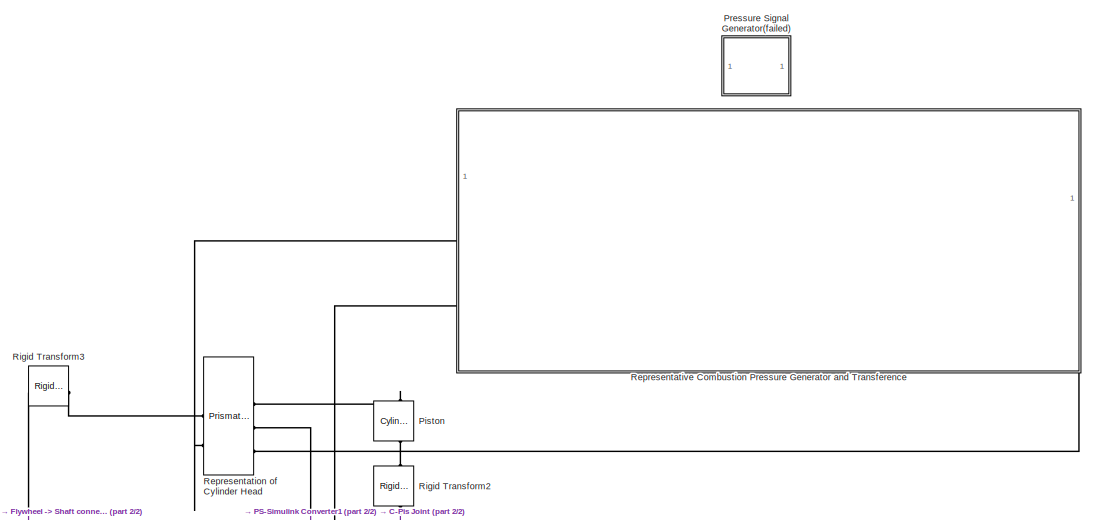
[diagram: root canvas - part 1/2, full width, top band]
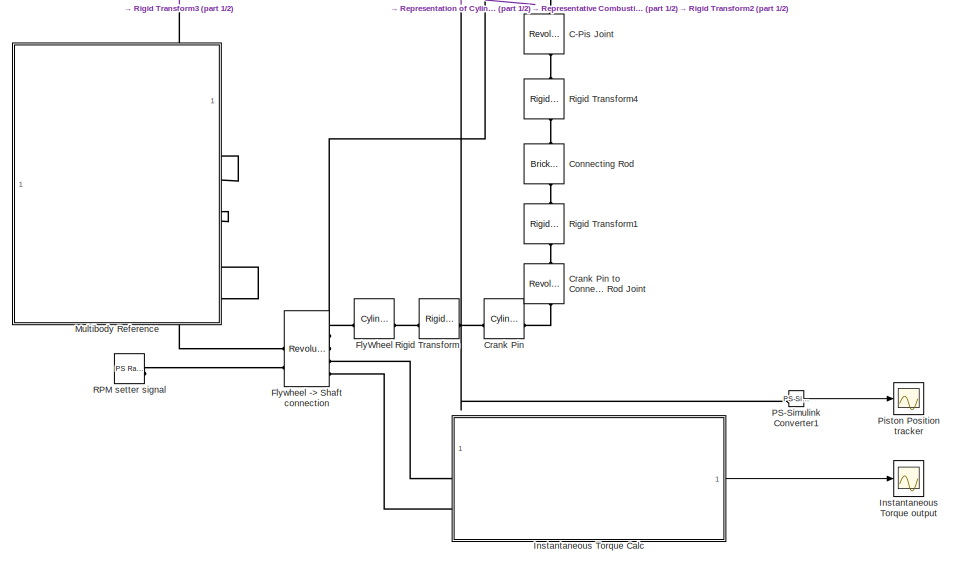
[diagram: root canvas - part 2/2, full width, bottom band]
MODEL slx_8fad8a88feab
KIND model
CONFIG AbsTol = auto
CONFIG EnableMultiTasking = off
CONFIG FixedStep = auto
CONFIG InitFcn = load("engine_params.mat");
CONFIG MaxStep = auto
CONFIG MinStep = auto
CONFIG RelTol = 1e-3
CONFIG SampleTimeConstraint = Unconstrained
CONFIG SolverName = ode15s
CONFIG StartTime = 0.0
CONFIG StopTime = 120
BLOCK [Reference] C-Pis Joint  REF=sm_lib/Joints/Revolute Joint
  NameLocation = right
  SourceBlock = sm_lib/Joints/Revolute Joint
  SourceType = Revolute Joint
BLOCK [Reference] Connecting Rod  REF=sm_lib/Body Elements/Brick Solid
  NameLocation = right
  SourceBlock = sm_lib/Body Elements/Brick Solid
  SourceType = Brick Solid
BLOCK [Reference] Crank Pin  REF=sm_lib/Body Elements/Cylindrical Solid
  SourceBlock = sm_lib/Body Elements/Cylindrical Solid
  SourceType = Cylindrical Solid
BLOCK [Reference] Crank Pin to Connecting Rod Joint  REF=sm_lib/Joints/Revolute Joint
  NameLocation = right
  SourceBlock = sm_lib/Joints/Revolute Joint
  SourceType = Revolute Joint
BLOCK [Reference] FlyWheel  REF=sm_lib/Body Elements/Cylindrical Solid
  NameLocation = top
  SourceBlock = sm_lib/Body Elements/Cylindrical Solid
  SourceType = Cylindrical Solid
BLOCK [Reference] Flywheel -> Shaft connection  REF=sm_lib/Joints/Revolute Joint
  SourceBlock = sm_lib/Joints/Revolute Joint
  SourceType = Revolute Joint
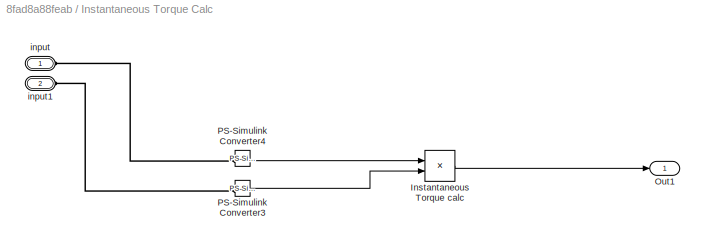
BLOCK [SubSystem] Instantaneous Torque Calc
BLOCK [Product] Instantaneous Torque Calc/Instantaneous Torque calc
BLOCK [Outport] Instantaneous Torque Calc/Out1
BLOCK [Reference] Instantaneous Torque Calc/PS-Simulink Converter3  REF=nesl_utility/PS-Simulink
Converter
  SourceBlock = nesl_utility/PS-Simulink\nConverter
  SourceType = PS-Simulink\nConverter
BLOCK [Reference] Instantaneous Torque Calc/PS-Simulink Converter4  REF=nesl_utility/PS-Simulink
Converter
  SourceBlock = nesl_utility/PS-Simulink\nConverter
  SourceType = PS-Simulink\nConverter
BLOCK [PMIOPort] Instantaneous Torque Calc/input
  Side = Left
BLOCK [PMIOPort] Instantaneous Torque Calc/input1
  Port = 2
  Side = Left
BLOCK [Scope] Instantaneous Torque output
  Floating = off
  NumInputPorts = 1
  ScopeSpecificationString = Simulink.scopes.TimeScopeBlockCfg('CurrentConfiguration', extmgr.ConfigurationSet(extmgr.Configuration('Core','General UI',true),extmgr.Configuration('Core','Source UI',true),extmgr.Configuration('Sources','WiredSimulink',true),extmgr.Configuration('Visuals','Time Domain',true,'SerializedDisplays',{struct('MinYLimReal','-504558162.89336','MaxYLimReal','373957791.12561','YLabelReal','','MinYLimMag'...<+1705ch>
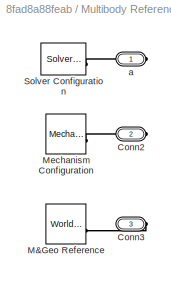
BLOCK [SubSystem] Multibody Reference
BLOCK [PMIOPort] Multibody Reference/Conn2
  Port = 2
  Side = Right
BLOCK [PMIOPort] Multibody Reference/Conn3
  Port = 3
  Side = Right
BLOCK [Reference] Multibody Reference/M&Geo Reference  REF=sm_lib/Frames and
Transforms/World Frame
  SourceBlock = sm_lib/Frames and\nTransforms/World Frame
  SourceType = World Frame
BLOCK [Reference] Multibody Reference/Mechanism Configuration  REF=sm_lib/Utilities/Mechanism
Configuration
  SourceBlock = sm_lib/Utilities/Mechanism\nConfiguration
  SourceType = Mechanism\nConfiguration
BLOCK [Reference] Multibody Reference/Solver Configuration  REF=nesl_utility/Solver
Configuration
  SourceBlock = nesl_utility/Solver\nConfiguration
  SourceType = Solver\nConfiguration
BLOCK [PMIOPort] Multibody Reference/a
  Side = Right
BLOCK [Reference] PS-Simulink Converter1  REF=nesl_utility/PS-Simulink
Converter
  SourceBlock = nesl_utility/PS-Simulink\nConverter
  SourceType = PS-Simulink\nConverter
BLOCK [Reference] Piston  REF=sm_lib/Body Elements/Cylindrical Solid
  NameLocation = right
  SourceBlock = sm_lib/Body Elements/Cylindrical Solid
  SourceType = Cylindrical Solid
BLOCK [Scope] Piston Position tracker
  Floating = off
  NumInputPorts = 1
  ScopeSpecificationString = Simulink.scopes.TimeScopeBlockCfg('CurrentConfiguration', extmgr.ConfigurationSet(extmgr.Configuration('Core','General UI',true),extmgr.Configuration('Core','Source UI',true),extmgr.Configuration('Sources','WiredSimulink',true,'DataLoggingVariableName','ScopeData1'),extmgr.Configuration('Visuals','Time Domain',true,'SerializedDisplays',{struct('MinYLimReal','0.14889','MaxYLimReal','0.26893','YLabe...<+1494ch>
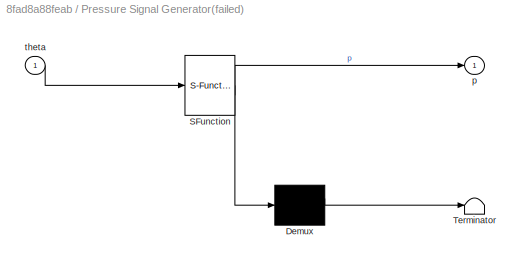
BLOCK [SubSystem] Pressure Signal Generator(failed)
  ErrorFcn = Stateflow.Translate.translate
  PermitHierarchicalResolution = ExplicitOnly
  SFBlockType = MATLAB Function
  TreatAsAtomicUnit = on
BLOCK [Demux] Pressure Signal Generator(failed)/ Demux 
  Outputs = 1
BLOCK [S-Function] Pressure Signal Generator(failed)/ SFunction 
  EnableBusSupport = on
  FunctionName = sf_sfun
  Parameters = E_comb,V_max,dur,theta_ign
  PortCounts = [1 2]
  SFcnIsStateOwnerBlock = off
  SFunctionDeploymentMode = off
  Tag = Stateflow S-Function 2
BLOCK [Terminator] Pressure Signal Generator(failed)/ Terminator 
BLOCK [Outport] Pressure Signal Generator(failed)/p
BLOCK [Inport] Pressure Signal Generator(failed)/theta
BLOCK [Reference] RPM setter signal  REF=fl_lib/Physical Signals/Sources/PS Ramp
  SourceBlock = fl_lib/Physical Signals/Sources/PS Ramp
  SourceType = PS Ramp
BLOCK [Reference] Representation of Cylinder Head  REF=sm_lib/Joints/Prismatic
Joint
  SourceBlock = sm_lib/Joints/Prismatic\nJoint
  SourceType = Prismatic\nJoint
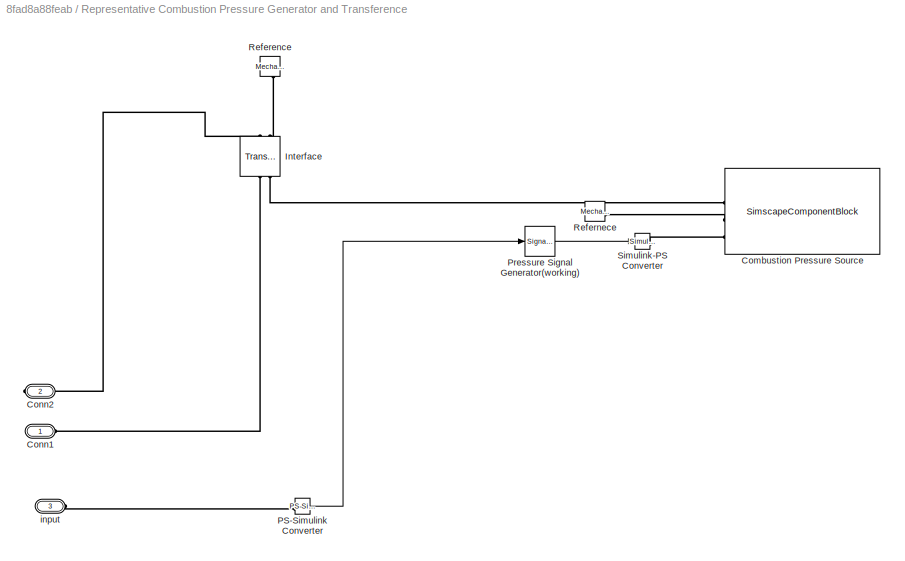
BLOCK [SubSystem] Representative Combustion Pressure Generator and Transference
BLOCK [SimscapeComponentBlock] Representative Combustion Pressure Generator and Transference/Combustion Pressure Source
  A = Engine.A_piston
  A_conf = compiletime
  A_unit = m^2
  ClassName = CombustionPressureSource
  ComponentPath = CombustionPressureSource
  ComponentVariantNames = ["CombustionPressureSource"]
  ComponentVariants = ["CombustionPressureSource"]
  CopyFcn = simscape.engine.sli.internal.componentblockcallback(gcbh,'COPY')
  InternalSimscapePortConfiguration = {"Bottom":[],"Left":[{"id":"P","label":"P","type":"foundation.mechanical.translational.translational"},{"id":"C","label":"C","type":"foundation.mechanical.translational.translational"},{"id":"p_cyl","label":"p_cyl","type":"input"}],"Right":[],"Top":[]}
  MaskType = CombustionPressureSource
  PreCopyFcn = simscape.engine.sli.internal.componentblockcallback(gcbh,'PRECOPY')
  PreDeleteFcn = simscape.engine.sli.internal.componentblockcallback(gcbh,'PREDELETE')
  SchemaVersion = 1
  SourceFile = CombustionPressureSource
  f = 0
  f_nominal_specify = off
  f_nominal_unit = N
  f_nominal_value = 1
  f_priority = None
  f_specify = off
  f_unit = N
BLOCK [PMIOPort] Representative Combustion Pressure Generator and Transference/Conn1
  NameLocation = top
  Side = Left
BLOCK [PMIOPort] Representative Combustion Pressure Generator and Transference/Conn2
  Port = 2
  Side = Right
BLOCK [Reference] Representative Combustion Pressure Generator and Transference/Interface   REF=fl_lib/Mechanical/Multibody Interfaces/Translational
Multibody Interface
  NameLocation = right
  SourceBlock = fl_lib/Mechanical/Multibody Interfaces/Translational\nMultibody Interface
  SourceType = Translational\nMultibody Interface
BLOCK [Reference] Representative Combustion Pressure Generator and Transference/PS-Simulink Converter  REF=nesl_utility/PS-Simulink
Converter
  SourceBlock = nesl_utility/PS-Simulink\nConverter
  SourceType = PS-Simulink\nConverter
BLOCK [SignalGenerator] Representative Combustion Pressure Generator and Transference/Pressure Signal Generator(working)
  Amplitude = E_comb / V_max
  Frequency = 1/2
  TimeSource = Use external signal
  Units = rad/sec
  WaveForm = sawtooth
BLOCK [Reference] Representative Combustion Pressure Generator and Transference/Reference  REF=fl_lib/Mechanical/Translational
Elements/Mechanical
Translational
Reference
  NameLocation = left
  SourceBlock = fl_lib/Mechanical/Translational\nElements/Mechanical\nTranslational\nReference
  SourceType = Mechanical\nTranslational\nReference
BLOCK [Reference] Representative Combustion Pressure Generator and Transference/Refernece  REF=fl_lib/Mechanical/Translational
Elements/Mechanical
Translational
Reference
  SourceBlock = fl_lib/Mechanical/Translational\nElements/Mechanical\nTranslational\nReference
  SourceType = Mechanical\nTranslational\nReference
BLOCK [Reference] Representative Combustion Pressure Generator and Transference/Simulink-PS Converter  REF=nesl_utility/Simulink-PS
Converter
  SourceBlock = nesl_utility/Simulink-PS\nConverter
  SourceType = Simulink-PS\nConverter
BLOCK [PMIOPort] Representative Combustion Pressure Generator and Transference/input
  Port = 3
  Side = Left
BLOCK [Reference] Rigid Transform  REF=sm_lib/Frames and
Transforms/Rigid
Transform
  SourceBlock = sm_lib/Frames and\nTransforms/Rigid\nTransform
  SourceType = Rigid\nTransform
BLOCK [Reference] Rigid Transform1  REF=sm_lib/Frames and
Transforms/Rigid
Transform
  NameLocation = right
  SourceBlock = sm_lib/Frames and\nTransforms/Rigid\nTransform
  SourceType = Rigid\nTransform
BLOCK [Reference] Rigid Transform2  REF=sm_lib/Frames and
Transforms/Rigid
Transform
  NameLocation = right
  SourceBlock = sm_lib/Frames and\nTransforms/Rigid\nTransform
  SourceType = Rigid\nTransform
BLOCK [Reference] Rigid Transform3  REF=sm_lib/Frames and
Transforms/Rigid
Transform
  SourceBlock = sm_lib/Frames and\nTransforms/Rigid\nTransform
  SourceType = Rigid\nTransform
BLOCK [Reference] Rigid Transform4  REF=sm_lib/Frames and
Transforms/Rigid
Transform
  NameLocation = right
  SourceBlock = sm_lib/Frames and\nTransforms/Rigid\nTransform
  SourceType = Rigid\nTransform
LINE Instantaneous Torque Calc/Instantaneous Torque calc:1 -> Instantaneous Torque Calc/Out1:1
LINE Instantaneous Torque Calc/PS-Simulink Converter3:1 -> Instantaneous Torque Calc/Instantaneous Torque calc:2
LINE Instantaneous Torque Calc/PS-Simulink Converter4:1 -> Instantaneous Torque Calc/Instantaneous Torque calc:1
LINE Instantaneous Torque Calc:1 -> Instantaneous Torque output:1
LINE PS-Simulink Converter1:1 -> Piston Position tracker:1
LINE Representative Combustion Pressure Generator and Transference/PS-Simulink Converter:1 -> Representative Combustion Pressure Generator and Transference/Pressure Signal Generator(working):1
LINE Representative Combustion Pressure Generator and Transference/Pressure Signal Generator(working):1 -> Representative Combustion Pressure Generator and Transference/Simulink-PS Converter:1
PLINE C-Pis Joint:LConn1 -- Rigid Transform4:RConn1
PLINE C-Pis Joint:RConn1 -- Rigid Transform2:LConn1
PLINE Connecting Rod:LConn1 -- Rigid Transform1:RConn1
PLINE Connecting Rod:RConn1 -- Rigid Transform4:LConn1
PLINE Crank Pin to Connecting Rod Joint:LConn1 -- Crank Pin:RConn1
PLINE Crank Pin to Connecting Rod Joint:RConn1 -- Rigid Transform1:LConn1
PLINE Crank Pin:LConn1 -- Rigid Transform:RConn1
PLINE FlyWheel:LConn1 -- Rigid Transform:LConn1
PLINE FlyWheel:RConn1 -- Flywheel -> Shaft connection:RConn1
PNET net1: Flywheel -> Shaft connection:LConn1 -- Multibody Reference:RConn1 -- Multibody Reference:RConn2 -- Multibody Reference:RConn3 -- Rigid Transform3:LConn1
PLINE Flywheel -> Shaft connection:LConn2 -- RPM setter signal:RConn1
PLINE Flywheel -> Shaft connection:RConn2 -- Representative Combustion Pressure Generator and Transference:LConn2
PLINE Flywheel -> Shaft connection:RConn3 -- Instantaneous Torque Calc:LConn1
PLINE Flywheel -> Shaft connection:RConn4 -- Instantaneous Torque Calc:LConn2
PLINE Instantaneous Torque Calc/PS-Simulink Converter3:LConn1 -- Instantaneous Torque Calc/input1:RConn1
PLINE Instantaneous Torque Calc/PS-Simulink Converter4:LConn1 -- Instantaneous Torque Calc/input:RConn1
PLINE Multibody Reference/Conn2:RConn1 -- Multibody Reference/Mechanism Configuration:RConn1
PLINE Multibody Reference/Conn3:RConn1 -- Multibody Reference/M&Geo Reference:RConn1
PLINE Multibody Reference/Solver Configuration:RConn1 -- Multibody Reference/a:RConn1
PLINE PS-Simulink Converter1:LConn1 -- Representation of Cylinder Head:RConn2
PLINE Piston:LConn1 -- Rigid Transform2:RConn1
PLINE Piston:RConn1 -- Representation of Cylinder Head:RConn1
PLINE Representation of Cylinder Head:LConn1 -- Rigid Transform3:RConn1
PLINE Representation of Cylinder Head:LConn2 -- Representative Combustion Pressure Generator and Transference:LConn1
PLINE Representation of Cylinder Head:RConn3 -- Representative Combustion Pressure Generator and Transference:RConn1
PLINE Representative Combustion Pressure Generator and Transference/Combustion Pressure Source:LConn1 -- Representative Combustion Pressure Generator and Transference/Interface :LConn2
PLINE Representative Combustion Pressure Generator and Transference/Combustion Pressure Source:LConn2 -- Representative Combustion Pressure Generator and Transference/Refernece:LConn1
PLINE Representative Combustion Pressure Generator and Transference/Combustion Pressure Source:LConn3 -- Representative Combustion Pressure Generator and Transference/Simulink-PS Converter:RConn1
PLINE Representative Combustion Pressure Generator and Transference/Conn1:RConn1 -- Representative Combustion Pressure Generator and Transference/Interface :LConn1
PLINE Representative Combustion Pressure Generator and Transference/Conn2:RConn1 -- Representative Combustion Pressure Generator and Transference/Interface :RConn1
PLINE Representative Combustion Pressure Generator and Transference/Interface :RConn2 -- Representative Combustion Pressure Generator and Transference/Reference:LConn1
PLINE Representative Combustion Pressure Generator and Transference/PS-Simulink Converter:LConn1 -- Representative Combustion Pressure Generator and Transference/input:RConn1
note: PNET lines group multi-terminal physical nets as a canonical sorted terminal list (undirected conserving connections); 2-terminal nets keep the pairwise PLINE form
CHART Pressure Signal Generator(failed) states=1 transitions=1
  STATE_LABEL 'eML_blk_kernel()'
  STATE_LABEL 'SCRIPT:\nfunction p = pressure_profile(theta, E_comb, V_max, theta_ign, dur)\n% theta: instantaneous crank angle in radians\npmax = E_comb / V_max; % peak scaling\n\nperiod = 720;\npulse_pos = theta_ign;\n\npersistent u_prev;\nif isempty(u_prev)\n    u_prev = -1;\n    p = 0;\n    return;\nend\n\ncycle_prev = floor(u_prev / period);\n\ntarget_time = cycle_prev * (period + pulse_pos);\nif (u_prev < target_time) && (t...<+272ch>'
CHART  states=0 transitions=0
